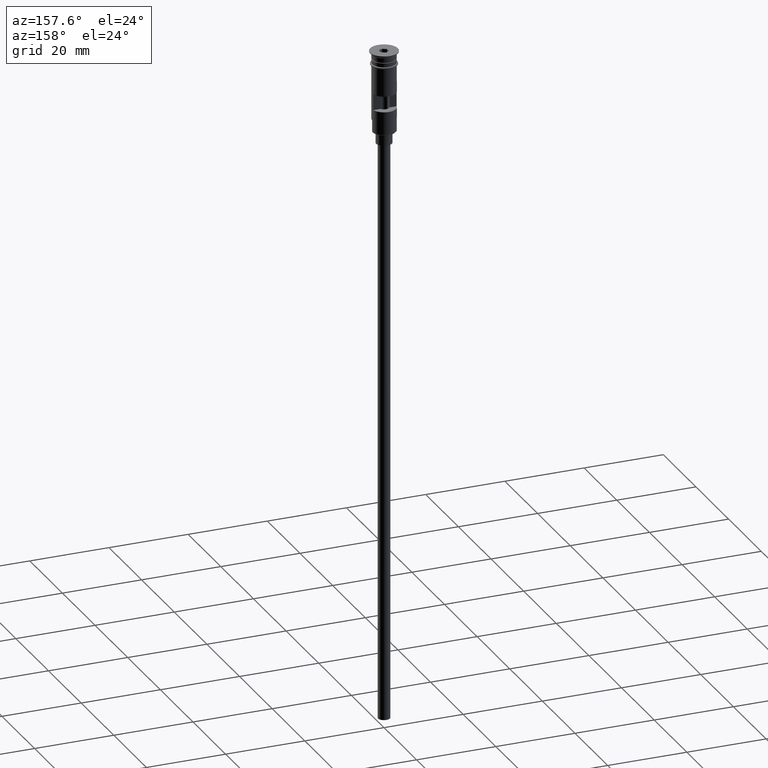
[diagram: clean part render]
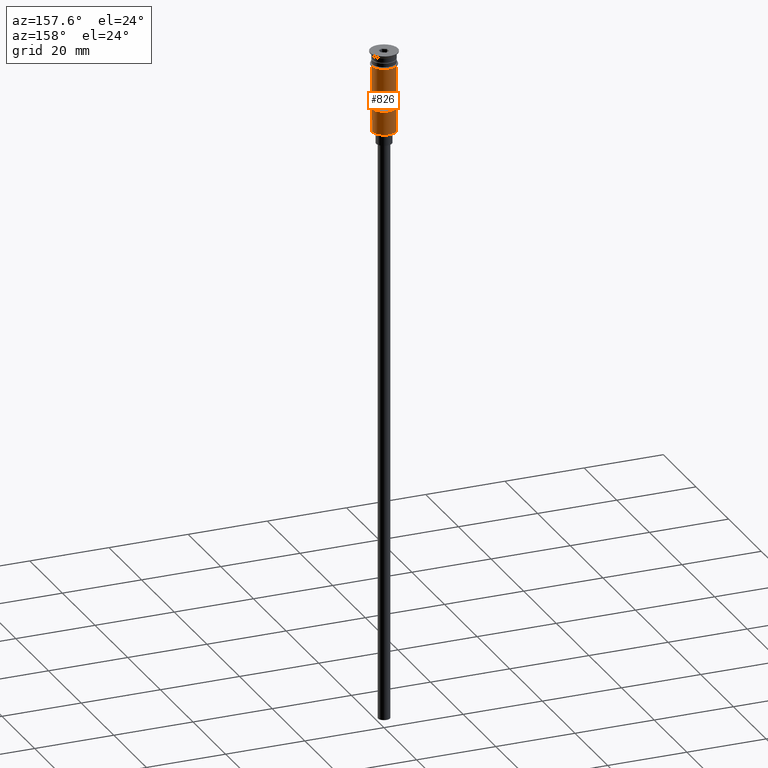
[diagram: same view with one face highlighted and labeled with its STEP entity id]
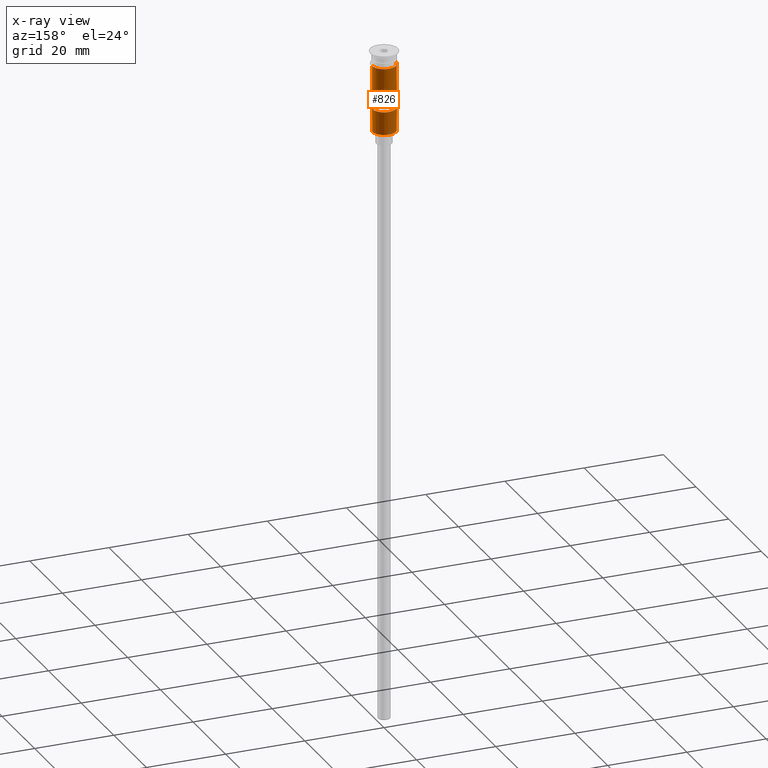
[diagram: x-ray of the same camera — body ghosted, the highlighted face saturated]
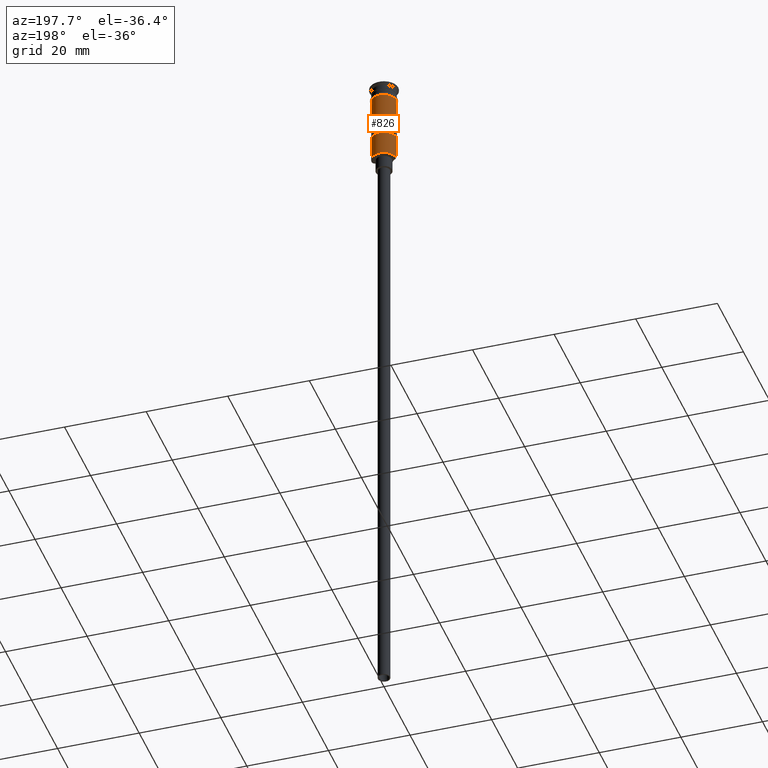
[diagram: same view with one face highlighted and labeled with its STEP entity id]
A machine part, auxiliary view. The second image highlights one B-rep face of the part: STEP entity #826.
The next image is the same camera in x-ray: the body ghosted, the highlighted face saturated — about 0% of this face is hidden behind the body in this view.
A second angle (auxiliary view) of the same face is appended — the face is thin or edge-on in the first view.
In plain terms, the highlighted cylindrical surface (edge-blend (fillet) strip) has radius 3 mm, axis along (-0, -0, 1).
Its self-contained STEP definition (entity closure, byte-faithful):
#11 = VECTOR ( 'NONE', #711, 1000.000000000000000 ) ;
#49 = EDGE_CURVE ( 'NONE', #694, #556, #1481, .T. ) ;
#57 = AXIS2_PLACEMENT_3D ( 'NONE', #295, #1029, #790 ) ;
#87 = VERTEX_POINT ( 'NONE', #1352 ) ;
#108 = AXIS2_PLACEMENT_3D ( 'NONE', #253, #236, #1241 ) ;
#111 = AXIS2_PLACEMENT_3D ( 'NONE', #896, #532, #384 ) ;
#119 = CARTESIAN_POINT ( 'NONE',  ( 0.000000000000000000, 0.000000000000000000, -20.29999999999995808 ) ) ;
#124 = LINE ( 'NONE', #587, #600 ) ;
#128 = ORIENTED_EDGE ( 'NONE', *, *, #620, .F. ) ;
#143 = EDGE_CURVE ( 'NONE', #320, #1456, #1227, .T. ) ;
#195 = DIRECTION ( 'NONE',  ( -0.000000000000000000, -0.000000000000000000, 1.000000000000000000 ) ) ;
#221 = CARTESIAN_POINT ( 'NONE',  ( 0.000000000000000000, 0.000000000000000000, 0.000000000000000000 ) ) ;
#236 = DIRECTION ( 'NONE',  ( 0.000000000000000000, 0.000000000000000000, 1.000000000000000000 ) ) ;
#253 = CARTESIAN_POINT ( 'NONE',  ( 0.000000000000000000, 0.000000000000000000, -14.50000000000000000 ) ) ;
#278 = VERTEX_POINT ( 'NONE', #961 ) ;
#295 = CARTESIAN_POINT ( 'NONE',  ( 0.000000000000000000, 0.000000000000000000, -3.499999999999998668 ) ) ;
#299 = VERTEX_POINT ( 'NONE', #973 ) ;
#320 = VERTEX_POINT ( 'NONE', #900 ) ;
#351 = LINE ( 'NONE', #1361, #1539 ) ;
#371 = DIRECTION ( 'NONE',  ( 1.000000000000000000, 0.000000000000000000, 0.000000000000000000 ) ) ;
#379 = CARTESIAN_POINT ( 'NONE',  ( -2.999999999999999112, 3.673940397442058389E-16, -3.499999999999998668 ) ) ;
#384 = DIRECTION ( 'NONE',  ( 1.000000000000000000, 0.000000000000000000, 0.000000000000000000 ) ) ;
#399 = CARTESIAN_POINT ( 'NONE',  ( -2.999999999999995115, 0.000000000000000000, -20.29999999999995808 ) ) ;
#403 = ORIENTED_EDGE ( 'NONE', *, *, #957, .F. ) ;
#458 = VERTEX_POINT ( 'NONE', #379 ) ;
#510 = ORIENTED_EDGE ( 'NONE', *, *, #966, .F. ) ;
#532 = DIRECTION ( 'NONE',  ( -0.000000000000000000, 0.000000000000000000, -1.000000000000000000 ) ) ;
#552 = CARTESIAN_POINT ( 'NONE',  ( -2.999999999999995115, 0.000000000000000000, -17.30000000000000782 ) ) ;
#553 = EDGE_CURVE ( 'NONE', #299, #458, #1459, .T. ) ;
#556 = VERTEX_POINT ( 'NONE', #399 ) ;
#564 = LINE ( 'NONE', #1085, #1591 ) ;
#587 = CARTESIAN_POINT ( 'NONE',  ( 2.939387691339810260, 0.5999999999999994227, 0.000000000000000000 ) ) ;
#600 = VECTOR ( 'NONE', #1570, 1000.000000000000000 ) ;
#613 = CARTESIAN_POINT ( 'NONE',  ( -2.939387691339810260, 0.5999999999999994227, -14.50000000000000000 ) ) ;
#620 = EDGE_CURVE ( 'NONE', #694, #278, #923, .T. ) ;
#644 = DIRECTION ( 'NONE',  ( -0.000000000000000000, -0.000000000000000000, 1.000000000000000000 ) ) ;
#650 = VERTEX_POINT ( 'NONE', #552 ) ;
#664 = CARTESIAN_POINT ( 'NONE',  ( -2.939387691339810260, 0.5999999999999994227, -10.50000000000000000 ) ) ;
#673 = EDGE_CURVE ( 'NONE', #1456, #1313, #1578, .T. ) ;
#694 = VERTEX_POINT ( 'NONE', #1440 ) ;
#705 = EDGE_CURVE ( 'NONE', #556, #650, #1549, .T. ) ;
#711 = DIRECTION ( 'NONE',  ( -0.000000000000000000, -0.000000000000000000, 1.000000000000000000 ) ) ;
#790 = DIRECTION ( 'NONE',  ( 1.000000000000000000, 0.000000000000000000, 0.000000000000000000 ) ) ;
#806 = AXIS2_PLACEMENT_3D ( 'NONE', #221, #1350, #371 ) ;
#826 = ADVANCED_FACE ( 'NONE', ( #1125, #977 ), #1246, .T. ) ;
#827 = ORIENTED_EDGE ( 'NONE', *, *, #1542, .F. ) ;
#896 = CARTESIAN_POINT ( 'NONE',  ( 0.000000000000000000, 0.000000000000000000, -10.50000000000000000 ) ) ;
#900 = CARTESIAN_POINT ( 'NONE',  ( 2.939387691339810260, 0.5999999999999994227, -14.50000000000000000 ) ) ;
#909 = ORIENTED_EDGE ( 'NONE', *, *, #143, .F. ) ;
#923 = LINE ( 'NONE', #1413, #939 ) ;
#937 = CARTESIAN_POINT ( 'NONE',  ( -2.939387691339810260, 0.5999999999999994227, 0.000000000000000000 ) ) ;
#939 = VECTOR ( 'NONE', #1157, 1000.000000000000000 ) ;
#957 = EDGE_CURVE ( 'NONE', #278, #299, #351, .T. ) ;
#961 = CARTESIAN_POINT ( 'NONE',  ( 2.999999999999996891, 3.673940397442055924E-16, -17.30000000000000782 ) ) ;
#966 = EDGE_CURVE ( 'NONE', #1313, #87, #1144, .T. ) ;
#973 = CARTESIAN_POINT ( 'NONE',  ( 2.999999999999998668, 0.000000000000000000, -3.499999999999998668 ) ) ;
#977 = FACE_OUTER_BOUND ( 'NONE', #1425, .T. ) ;
#1029 = DIRECTION ( 'NONE',  ( -0.000000000000000000, -0.000000000000000000, 1.000000000000000000 ) ) ;
#1085 = CARTESIAN_POINT ( 'NONE',  ( -2.999999999999996891, 3.673940397442055924E-16, 0.000000000000000000 ) ) ;
#1103 = DIRECTION ( 'NONE',  ( -1.000000000000000000, 0.000000000000000000, 0.000000000000000000 ) ) ;
#1125 = FACE_BOUND ( 'NONE', #1312, .T. ) ;
#1144 = CIRCLE ( 'NONE', #111, 2.999999999999996891 ) ;
#1150 = ORIENTED_EDGE ( 'NONE', *, *, #1226, .T. ) ;
#1157 = DIRECTION ( 'NONE',  ( -0.000000000000000000, -0.000000000000000000, 1.000000000000000000 ) ) ;
#1171 = AXIS2_PLACEMENT_3D ( 'NONE', #119, #1590, #1103 ) ;
#1191 = DIRECTION ( 'NONE',  ( -0.000000000000000000, -0.000000000000000000, 1.000000000000000000 ) ) ;
#1226 = EDGE_CURVE ( 'NONE', #650, #458, #564, .T. ) ;
#1227 = CIRCLE ( 'NONE', #108, 2.999999999999996891 ) ;
#1241 = DIRECTION ( 'NONE',  ( -1.000000000000000000, 0.000000000000000000, 0.000000000000000000 ) ) ;
#1246 = CYLINDRICAL_SURFACE ( 'NONE', #806, 2.999999999999996891 ) ;
#1270 = ORIENTED_EDGE ( 'NONE', *, *, #673, .F. ) ;
#1312 = EDGE_LOOP ( 'NONE', ( #827, #510, #1270, #909 ) ) ;
#1313 = VERTEX_POINT ( 'NONE', #664 ) ;
#1323 = ORIENTED_EDGE ( 'NONE', *, *, #705, .T. ) ;
#1350 = DIRECTION ( 'NONE',  ( -0.000000000000000000, -0.000000000000000000, 1.000000000000000000 ) ) ;
#1352 = CARTESIAN_POINT ( 'NONE',  ( 2.939387691339810260, 0.5999999999999994227, -10.50000000000000000 ) ) ;
#1361 = CARTESIAN_POINT ( 'NONE',  ( 2.999999999999996891, 0.000000000000000000, 0.000000000000000000 ) ) ;
#1413 = CARTESIAN_POINT ( 'NONE',  ( 2.999999999999995115, 3.673940397442053952E-16, -20.50000000000000000 ) ) ;
#1425 = EDGE_LOOP ( 'NONE', ( #1323, #1150, #1493, #403, #128, #1469 ) ) ;
#1432 = VECTOR ( 'NONE', #1191, 1000.000000000000000 ) ;
#1440 = CARTESIAN_POINT ( 'NONE',  ( 2.999999999999995115, 3.673940397442053952E-16, -20.29999999999995808 ) ) ;
#1456 = VERTEX_POINT ( 'NONE', #613 ) ;
#1459 = CIRCLE ( 'NONE', #57, 2.999999999999998668 ) ;
#1469 = ORIENTED_EDGE ( 'NONE', *, *, #49, .T. ) ;
#1481 = CIRCLE ( 'NONE', #1171, 2.999999999999996891 ) ;
#1493 = ORIENTED_EDGE ( 'NONE', *, *, #553, .F. ) ;
#1539 = VECTOR ( 'NONE', #644, 1000.000000000000000 ) ;
#1542 = EDGE_CURVE ( 'NONE', #87, #320, #124, .T. ) ;
#1549 = LINE ( 'NONE', #1572, #11 ) ;
#1570 = DIRECTION ( 'NONE',  ( 0.000000000000000000, 0.000000000000000000, -1.000000000000000000 ) ) ;
#1572 = CARTESIAN_POINT ( 'NONE',  ( -2.999999999999995115, 0.000000000000000000, -20.50000000000000000 ) ) ;
#1578 = LINE ( 'NONE', #937, #1432 ) ;
#1590 = DIRECTION ( 'NONE',  ( 0.000000000000000000, 0.000000000000000000, 1.000000000000000000 ) ) ;
#1591 = VECTOR ( 'NONE', #195, 1000.000000000000000 ) ;